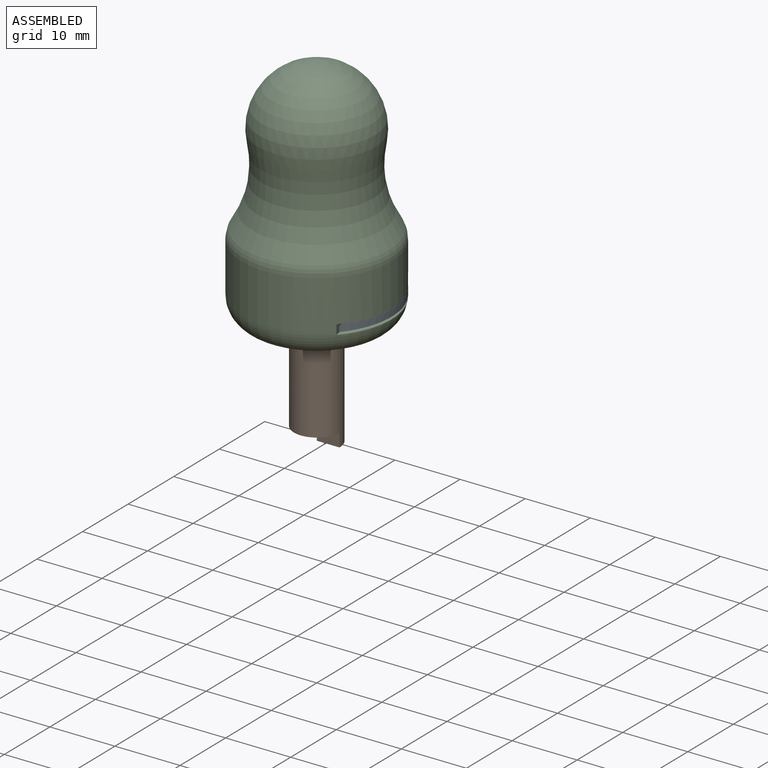
[diagram: assembled view]
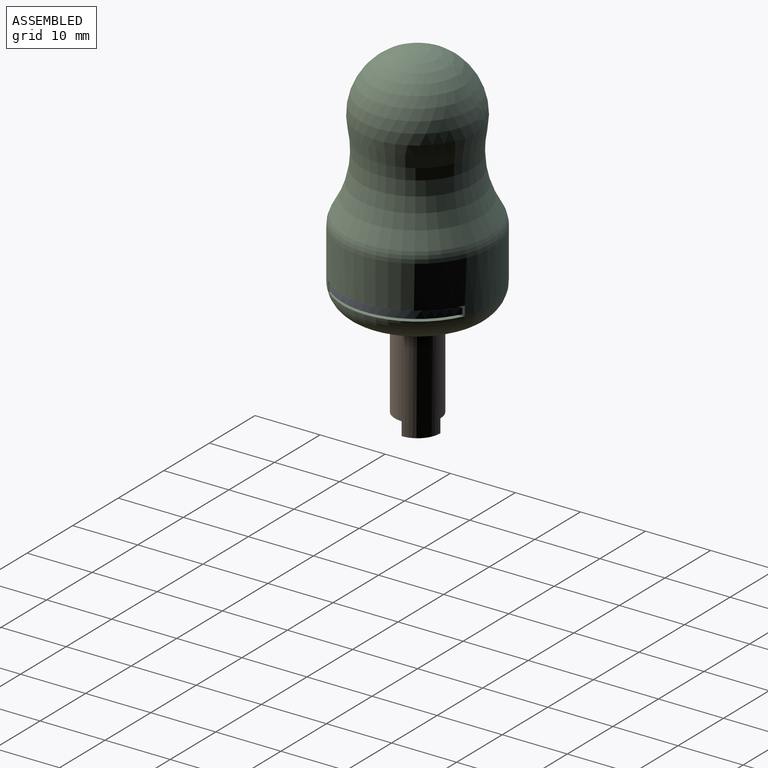
[diagram: assembled view, second angle]
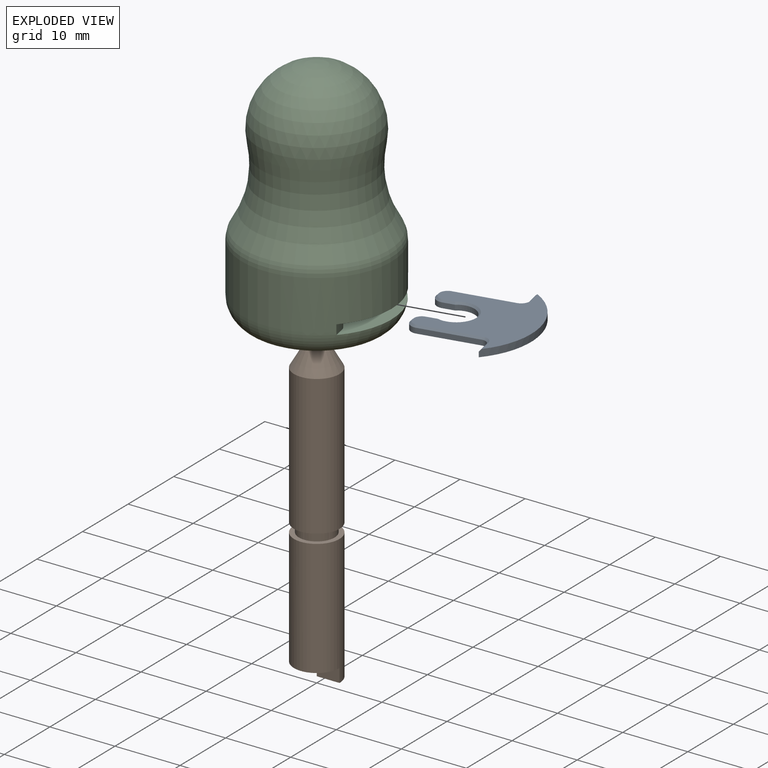
[diagram: exploded view]
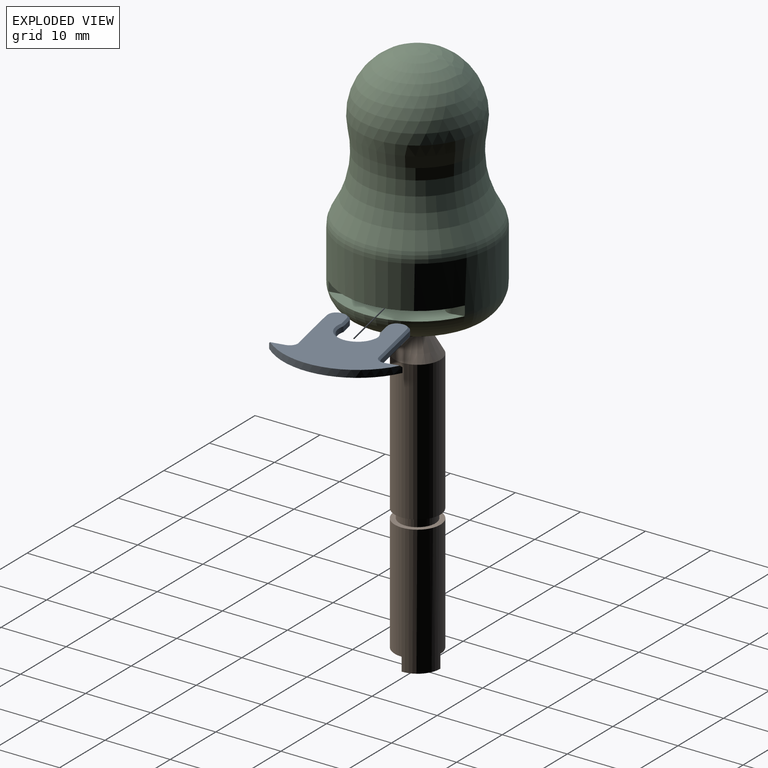
[diagram: exploded view, second angle]
ASSEMBLY  parts=3 mates=5
PART A: 33 faces, bbox 18.3x16x1.1 mm
  f0: plane 0.8x0.25mm, normal (0,1,0), area 0.2mm2, adj f3,f14,f17,f28
  f1: cylinder r=2.8mm len=5.6mm, axis (0,0,-1), area 9.1mm2, adj f3,f12,f13,f25
  f2: plane 17.77x15.7mm, normal (0,0,1), area 137.6mm2, adj f4,f18,f19,f20,f21,f22,f23,f24
  f3: plane 18.25x16mm, normal (0,0,-1), area 152.7mm2, adj f0,f1,f4,f5,f6,f7,f8,f9
  f4: cylinder r=11.5mm len=18.25mm, axis (0,0,-1), area 23.1mm2, adj f2,f3,f5,f9,f18,f32
  f5: plane 2.37x0.8mm, normal (0,1,0), area 1.9mm2, adj f3,f4,f10,f18
  f6: plane 9x0.8mm, normal (1,0,0), area 7.2mm2, adj f3,f10,f16,f20
  f7: plane 0.8x0.25mm, normal (0,1,0), area 0.2mm2, adj f3,f15,f16,f22
  f8: plane 9x0.8mm, normal (-1,0,0), area 7.2mm2, adj f3,f11,f17,f30
  f9: plane 2.37x0.8mm, normal (0,1,0), area 1.9mm2, adj f3,f4,f11,f32
  f10: cylinder r=1mm len=1mm, axis (0,0,-1), area 1.3mm2, adj f3,f5,f6,f19
  f11: cylinder r=1mm len=1mm, axis (0,0,-1), area 1.3mm2, adj f3,f8,f9,f31
  f12: plane 1.74x0.8mm, normal (-1,0,0), area 1.4mm2, adj f1,f3,f15,f24
  f13: plane 1.74x0.8mm, normal (1,0,0), area 1.4mm2, adj f1,f3,f14,f26
  f14: cylinder r=1.5mm len=1.5mm, axis (0,0,-1), area 1.9mm2, adj f0,f3,f13,f27
  f15: cylinder r=1.5mm len=1.5mm, axis (0,0,1), area 1.9mm2, adj f3,f7,f12,f23
  f16: cylinder r=1.5mm len=1.5mm, axis (0,0,-1), area 1.9mm2, adj f3,f6,f7,f21
  f17: cylinder r=1.5mm len=1.5mm, axis (0,0,1), area 1.9mm2, adj f0,f3,f8,f29
  f18: plane 2.38x0.3mm, normal (0,0.71,0.71), area 1mm2, adj f2,f4,f5,f19
  f19: cone r=1.3mm half-angle=45deg, axis (0,0,1), area 0.8mm2, adj f2,f10,f18,f20
  f20: plane 9x0.3mm, normal (0.71,0,0.71), area 3.8mm2, adj f2,f6,f19,f21
  f21: cone r=1.2mm half-angle=45deg, axis (0,0,-1), area 0.9mm2, adj f2,f16,f20,f22
  f22: plane 0.3x0.3mm, normal (0,0.71,0.71), area 0.1mm2, adj f2,f7,f21,f23
  f23: cone r=1.2mm half-angle=45deg, axis (0,0,-1), area 0.9mm2, adj f2,f15,f22,f24
  f24: plane 1.74x0.3mm, normal (-0.71,0,0.71), area 0.7mm2, adj f2,f12,f23,f25
  f25: cone r=2.8mm half-angle=45deg, axis (0,0,1), area 5.1mm2, adj f1,f2,f24,f26
  f26: plane 1.74x0.3mm, normal (0.71,0,0.71), area 0.7mm2, adj f2,f13,f25,f27
  f27: cone r=1.2mm half-angle=45deg, axis (0,0,-1), area 0.9mm2, adj f2,f14,f26,f28
  f28: plane 0.3x0.3mm, normal (0,0.71,0.71), area 0.1mm2, adj f0,f2,f27,f29
  f29: cone r=1.2mm half-angle=45deg, axis (0,0,-1), area 0.9mm2, adj f2,f17,f28,f30
  f30: plane 9x0.3mm, normal (-0.71,0,0.71), area 3.8mm2, adj f2,f8,f29,f31
  f31: cone r=1.3mm half-angle=45deg, axis (0,0,1), area 0.8mm2, adj f2,f11,f30,f32
  f32: plane 2.38x0.3mm, normal (0,0.71,0.71), area 1mm2, adj f2,f4,f9,f31
PART B: 11 faces, bbox 7x7x46.4 mm
  f0: cylinder r=3.5mm len=20mm, axis (0,0,1), area 405.7mm2, adj f1,f7,f8,f9,f10
  f1: plane 3.5x3.5mm, normal (0,0,-1), area 9.6mm2, adj f0,f9,f10
  f2: plane 3x3mm, normal (0,0,1), area 7.1mm2, adj f3
  f3: cone r=3.5mm half-angle=29.7deg, axis (0,0,-1), area 63.3mm2, adj f2,f4
  f4: cylinder r=3.5mm len=21.5mm, axis (0,0,1), area 472.8mm2, adj f3,f5
  f5: plane 7x7mm, normal (0,0,-1), area 14.7mm2, adj f4,f6
  f6: cylinder r=2.75mm len=5.5mm, axis (0,0,1), area 24.2mm2, adj f5,f7
  f7: plane 7x7mm, normal (0,0,1), area 14.7mm2, adj f0,f6
  f8: plane 7x7mm, normal (0,0,-1), area 28.9mm2, adj f0,f9,f10
  f9: plane 3.5x2.07mm, normal (0,-1,0), area 7.2mm2, adj f0,f1,f8,f10
  f10: plane 3.5x2.07mm, normal (-1,0,0), area 7.2mm2, adj f0,f1,f8,f9
PART C: 25 faces, bbox 28.5x28.5x36 mm
  f0: plane 1.5x1mm, normal (0,1,0), area 1.5mm2, adj f6,f7,f19,f21
  f1: cylinder r=11.5mm len=23mm, axis (0,0,-1), area 523.9mm2, adj f3,f6,f14,f15,f24
  f2: torus R=24.5mm, axis (0,0,-1), area 696mm2, adj f3,f5
  f3: torus R=7.72mm, axis (0,0,-1), area 149.7mm2, adj f1,f2
  f4: plane 15x15mm, normal (0,0,-1), area 136mm2, adj f13,f24
  f5: sphere r=9mm, area 610.2mm2, adj f2
  f6: plane 18.69x16.5mm, normal (0,0,-1), area 160mm2, adj f0,f1,f8,f9,f10,f13,f14,f15
  f7: plane 18.62x16.47mm, normal (0,0,1), area 159.3mm2, adj f0,f8,f9,f10,f13,f14,f15,f16
  f8: plane 9x1.5mm, normal (-1,0,0), area 13.5mm2, adj f6,f7,f16,f19
  f9: plane 9x1.5mm, normal (1,0,0), area 13.5mm2, adj f6,f7,f17,f18
  f10: plane 1.5x1mm, normal (0,1,0), area 1.5mm2, adj f6,f7,f18,f20
  f11: plane 3.2x3.2mm, normal (0,0,-1), area 8mm2, adj f12
  f12: cone r=3.6mm half-angle=29.7deg, axis (0,0,-1), area 65.9mm2, adj f11,f13
  f13: cylinder r=3.6mm len=26.5mm, axis (0,0,-1), area 570.3mm2, adj f4,f6,f7,f12,f22,f23
  f14: plane 1.91x1.51mm, normal (0,1,0), area 2.8mm2, adj f1,f6,f7,f17,f24
  f15: plane 1.91x1.51mm, normal (0,1,0), area 2.8mm2, adj f1,f6,f7,f16,f24
  f16: cylinder r=1.2mm len=1.5mm, axis (0,0,-1), area 2.8mm2, adj f6,f7,f8,f15
  f17: cylinder r=1.2mm len=1.5mm, axis (0,0,1), area 2.8mm2, adj f6,f7,f9,f14
  f18: cylinder r=1.5mm len=1.5mm, axis (0,0,1), area 3.5mm2, adj f6,f7,f9,f10
  f19: cylinder r=1.5mm len=1.5mm, axis (0,0,-1), area 3.5mm2, adj f0,f6,f7,f8
  f20: cylinder r=1.5mm len=1.5mm, axis (0,0,1), area 3.3mm2, adj f6,f7,f10,f22
  f21: cylinder r=1.5mm len=1.5mm, axis (0,0,1), area 3.3mm2, adj f0,f6,f7,f23
  f22: cylinder r=0.5mm len=1.5mm, axis (0,0,-1), area 1.4mm2, adj f6,f7,f13,f20
  f23: cylinder r=0.5mm len=1.5mm, axis (0,0,-1), area 1.4mm2, adj f6,f7,f13,f21
  f24: torus R=7.5mm, axis (0,0,1), area 385.7mm2, adj f1,f4,f7,f14,f15
PLACE A rot(axis=(0,0,1),101.8deg) t=(0,0,20.3)mm
PLACE B at identity fixed
PLACE C rot(axis=(0,0,-1),78.2deg) t=(0,0,16.4)mm
MATE cylindrical C.f1 <-> B.f0  axis (0,0,-1) through (0,0,29.65)mm
MATE planar C.f1 <-> B.f0  axis (0,0,-1) through (0,0,46.4)mm
MATE cylindrical A.f1 <-> B.f0  axis (0,0,-1) through (0,0,20.7)mm
MATE parallel A.f5 <-> C.f14  axis (-0.98,-0.2,0) through (5.23,9.2,20.7)mm
MATE planar A.f2 <-> C.f6  axis (0,0,1) through (4.99,1.04,21.4)mm
